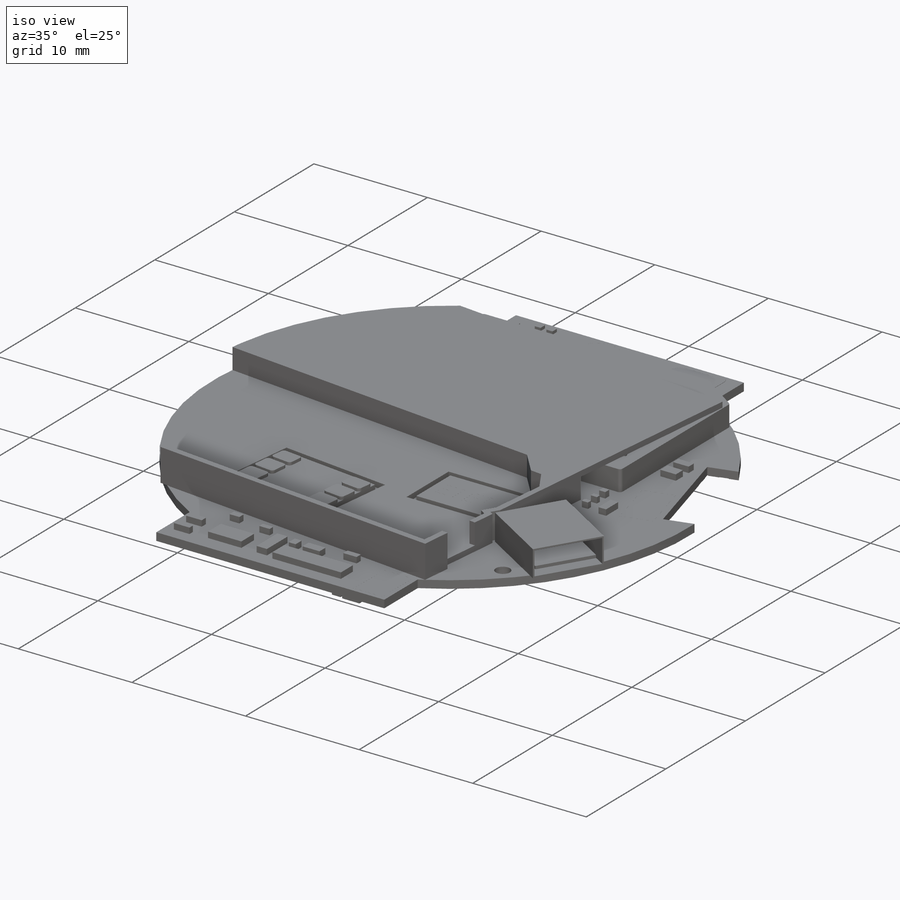
[diagram: iso view]
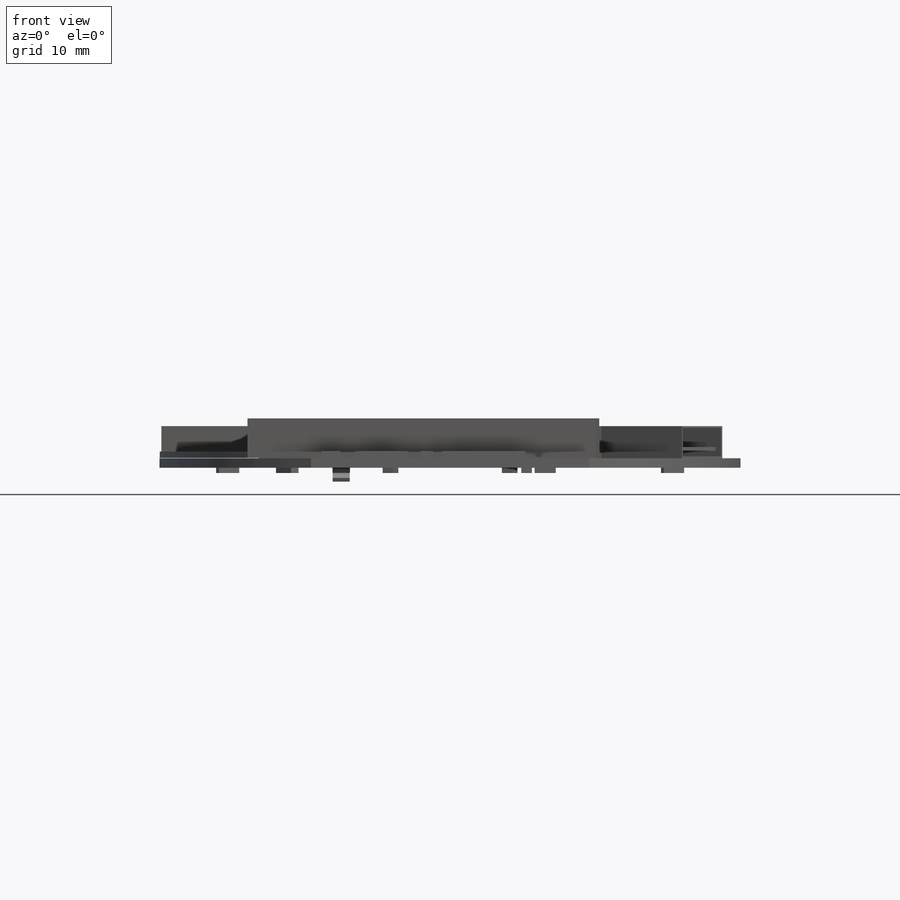
[diagram: front view]
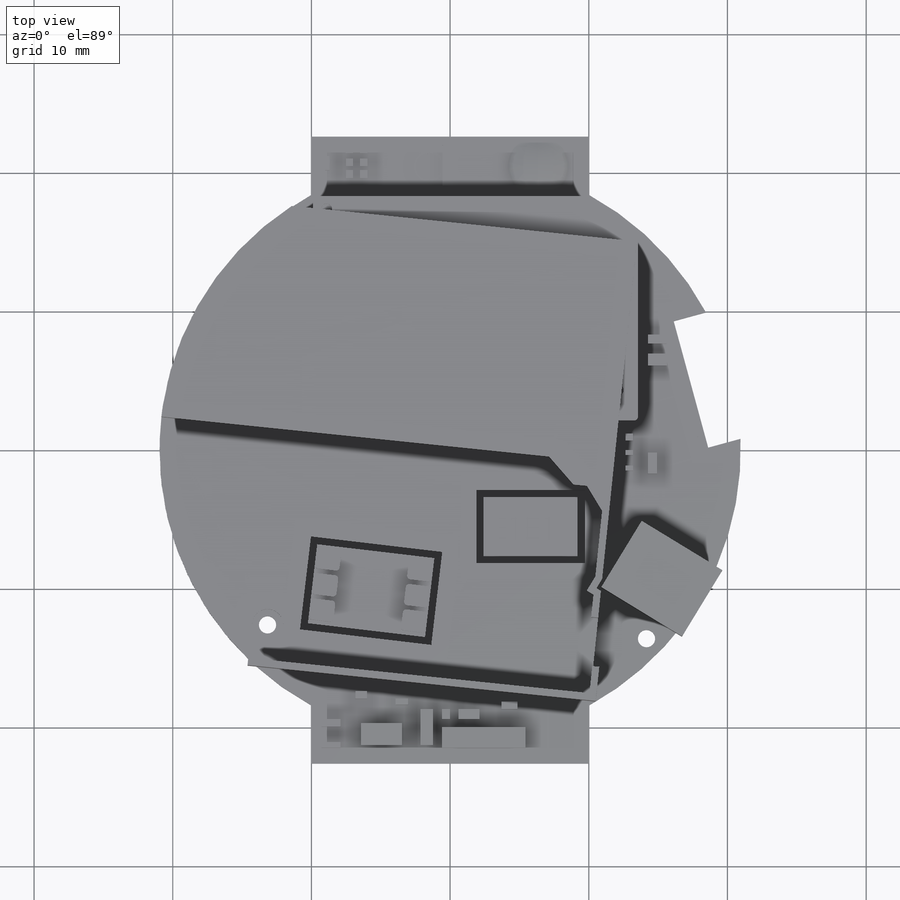
[diagram: top view]
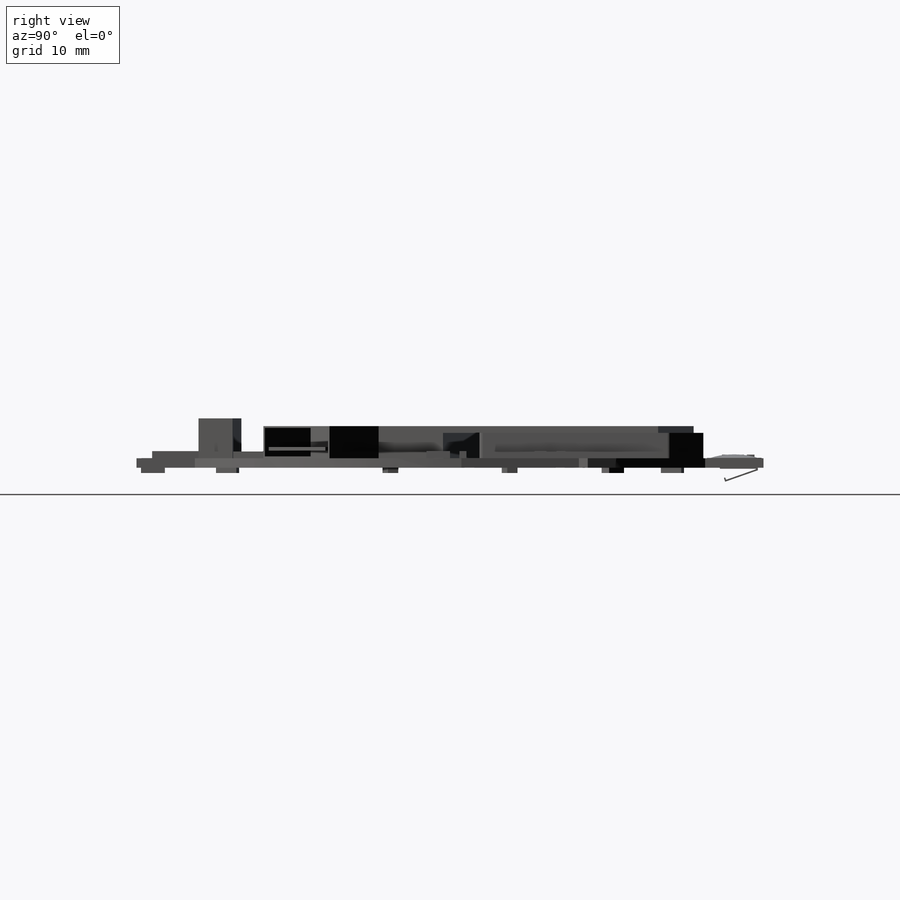
[diagram: right view]
SOLIDWORKS PART (.sldprt)
format: sldprt  version: not decoded by parser v0  size: 2,863,104 bytes
history: native  units: mm
features: sketch x33, extrude x18, cut_extrude x15, material x1, dome x1, plane x1 (+16 scaffold rows collapsed)
feature tree (85):
  scaffold x16  (default folders/planes/origin — collapsed)
  material  "Material <not specified>"
  sketch  "Sketch1"  dims[D1=41.91mm D2=20.066mm D3=45.212mm D4=11.938mm D5=9.4488mm D6=2.413mm]
  extrude  "Boss-Extrude1"  Depth=0.6858mm
  sketch  "Sketch3"  dims[D1=1.2446mm]
  cut_extrude  "Cut-Extrude1"  [1 undecoded]
  sketch  "Sketch4"  dims[D1=4.3942mm D3=1.27mm D2=2.3622mm D4=3.5052mm D5=0.7112mm D6=12.0]
  cut_extrude  "Cut-Extrude3"  Depth=0.0254mm
  sketch  "Sketch5"  dims[D1=3.3528mm D2=2.032mm D3=1.0922mm D4=0.4064mm]
  cut_extrude  "Cut-Extrude4"  Depth=0.0254mm
  sketch  "Sketch6"
  extrude  "Boss-Extrude2"  Depth=0.1016mm
  sketch  "Sketch7"  dims[D1=0.0254mm]
  extrude  "Boss-Extrude3"  [1 undecoded]
  sketch  "Sketch8"  dims[D1=0.762mm D2=0.762mm D3=6.0]
  extrude  "Boss-Extrude4"  Depth=0.381mm
  sketch  "Sketch9"  dims[D1=2.413mm D2=0.2032mm D3=0.2032mm]
  extrude  "Boss-Extrude5"  Depth=0.381mm
  sketch  "Sketch10"  dims[c1.D1=0.7366mm c1.D2=0.7366mm c1.D3=0.254mm c2.D2=0.381mm]
  cut_extrude  "Cut-Extrude5"  Depth=0.0254mm
  sketch  "Sketch11"
  cut_extrude  "Cut-Extrude6"  [1 undecoded]
  sketch  "Sketch12"  dims[D7=0.254mm D1=23.6982mm D2=1.016mm D3=10.922mm D4=11.43mm D5=15.3924mm D6=0.127mm]
  extrude  "Boss-Extrude6"  Depth=1.8288mm
  sketch  "Sketch13"
  cut_extrude  "Cut-Extrude8"  Depth=0.254mm
  sketch  "Sketch14"  dims[D1=3.937mm D2=0.0508mm]
  extrude  "Boss-Extrude7"  Depth=0.00254mm
  sketch  "Sketch15"  dims[D3=0.635mm D1=9.398mm D2=3.937mm]
  extrude  "Boss-Extrude8"  Depth=0.0254mm
  sketch  "Sketch16"  dims[D1=4.3688mm]
  cut_extrude  "Cut-Extrude9"  Depth=0.00254mm
  dome  "Dome1"
  sketch  "Sketch17"  dims[D1=0.5334mm D2=4.826mm D3=0.635mm D4=0.508mm D5=0.508mm D6=2.4638mm]
  extrude  "Boss-Extrude10"  Depth=2.8702mm
  sketch  "Sketch18"  dims[D1=0.4826mm D2=15.5956mm D3=16.7132mm]
  extrude  "Boss-Extrude12"  [1 undecoded]
  sketch  "Sketch19"  dims[D1=0.0mm]
  cut_extrude  "Cut-Extrude11"  Depth=2.8702mm
  plane  "Plane1"  Offset=22.510983mm
  sketch  "Sketch23"
  cut_extrude  "Cut-Extrude16"  Depth=8.7122mm
  sketch  "Sketch24"  dims[D1=8.128mm D2=5.588mm D3=0.508mm]
  sketch  "Sketch25"  dims[D1=0.254mm]
  cut_extrude  "Cut-Extrude17"  [1 undecoded]
  extrude  "Boss-Extrude16"  [1 undecoded]
  sketch  "Sketch27"  dims[D1=0.508mm]
  extrude  "Boss-Extrude17"  [1 undecoded]
  sketch  "Sketch28"  dims[D1=0.127mm]
  cut_extrude  "Cut-Extrude18"  Depth=6.35mm
  sketch  "Sketch29"
  extrude  "Boss-Extrude18"  Depth=6.096mm
  sketch  "Sketch30"  dims[D1=0.127mm]
  extrude  "Boss-Extrude19"  Depth=0.00254mm
  sketch  "Sketch31"
  extrude  "Boss-Extrude20"  Depth=0.51054mm
  sketch  "Sketch33"
  cut_extrude  "Cut-Extrude19"  [1 undecoded]
  sketch  "Sketch34"  dims[D1=0.508mm D2=0.508mm]
  extrude  "Boss-Extrude21"  Depth=0.51054mm
  sketch  "Sketch35"  dims[D1=0.254mm]
  extrude  "Boss-Extrude22"  Depth=0.25654mm
  sketch  "Sketch36"
  cut_extrude  "Cut-Extrude20"  Depth=0.00254mm
  sketch  "Sketch37"  dims[D1=0.0mm]
  cut_extrude  "Cut-Extrude21"  Depth=0.00254mm
  sketch  "Sketch38"  dims[D1=0.0mm D2=0.0mm D3=0.0mm D4=0.0mm D5=0.0mm D6=0.0mm D7=0.0mm]
  extrude  "Boss-Extrude23"  Depth=0.25654mm
  sketch  "Sketch39"  dims[D1=0.508mm]
  cut_extrude  "Cut-Extrude22"  [1 undecoded]
decode coverage: 49 of 67 modeling features carry decoded parameters
note: 9 parameter values undecoded
summary: no parameter record found for 9 features
note: suppression state not decoded; provenance and decode notes live in map.json
